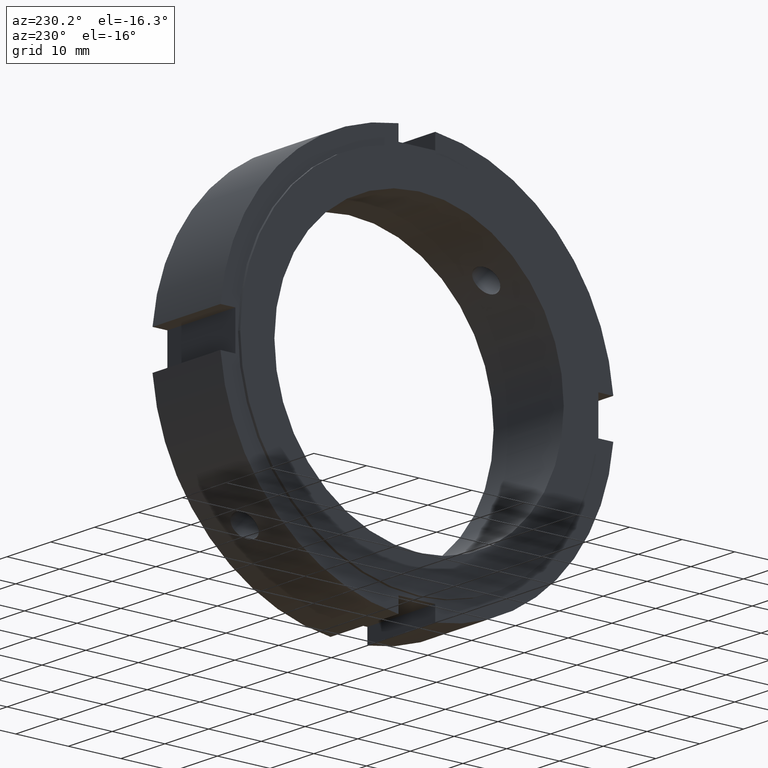
[diagram: clean part render]
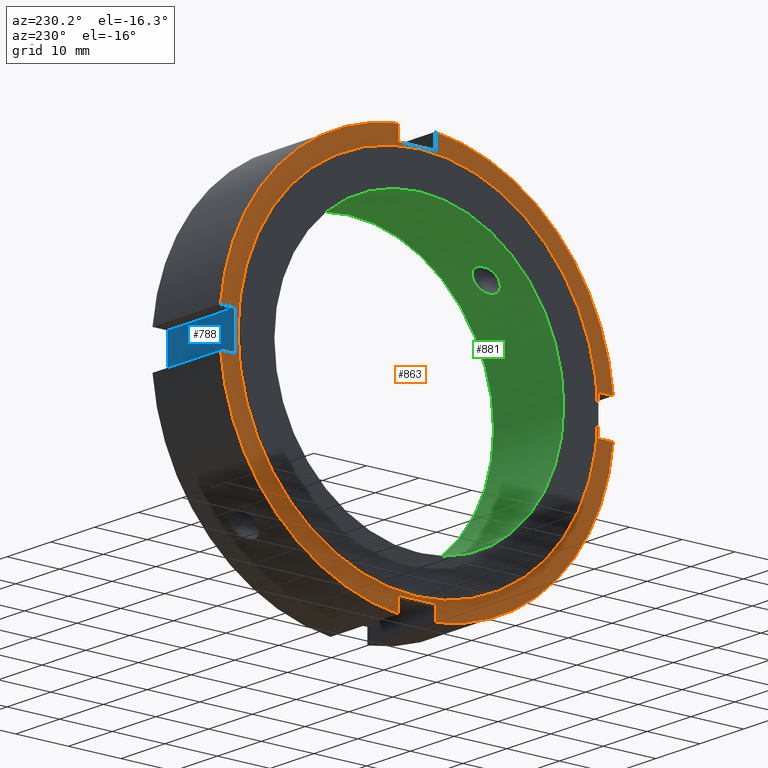
[diagram: same view with three faces highlighted in distinct colors, each labeled with its STEP entity id]
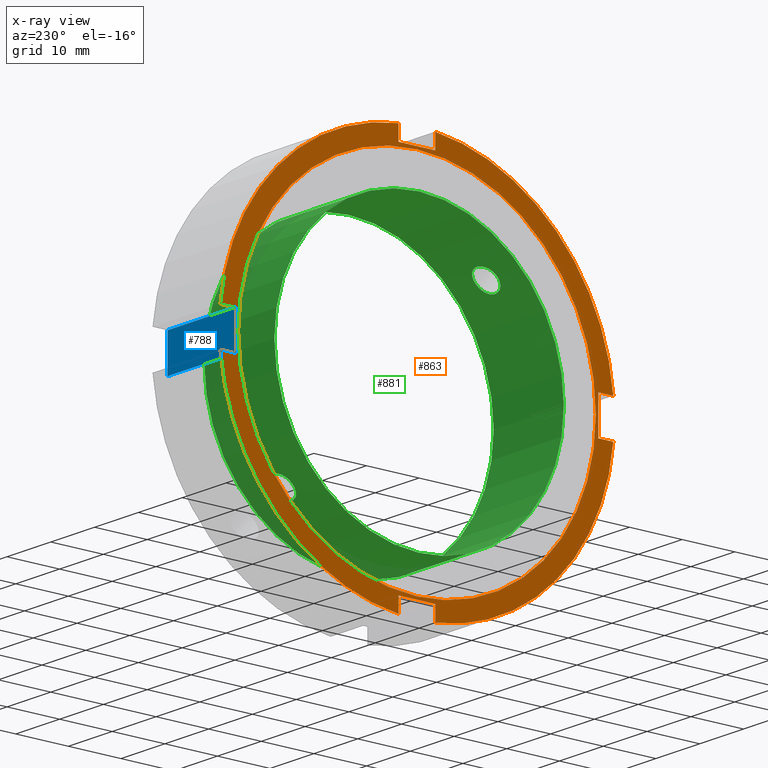
[diagram: x-ray of the same camera — body ghosted, the three highlighted faces saturated]
A machine part, auxiliary view with three faces highlighted in distinct colors.
The next image is the same camera in x-ray (body ghosted, the three faces saturated) — at least one of them is partly hidden behind the body in this view.
Their STEP definitions:

[orange] entity #863 — the highlighted planar face has unit normal (-1, 0, 0).
#249=CARTESIAN_POINT('',(0.499999999999992,-3.500000000000005,-34.500000000000000));
#250=VERTEX_POINT('',#249);
#251=CARTESIAN_POINT('',(0.499999999999989,-3.500000000000005,-37.336309405188935));
#252=VERTEX_POINT('',#251);
#253=CARTESIAN_POINT('',(0.499999999999992,-3.500000000000006,-34.500000000000000));
#254=DIRECTION('',(0.0,0.0,-1.0));
#255=VECTOR('',#254,2.836309405188935);
#256=LINE('',#253,#255);
#257=EDGE_CURVE('',#250,#252,#256,.T.);
#289=CARTESIAN_POINT('',(0.499999999999989,3.499999999999992,-37.336309405188935));
#290=VERTEX_POINT('',#289);
#291=CARTESIAN_POINT('',(0.499999999999992,3.499999999999992,-34.500000000000000));
#292=VERTEX_POINT('',#291);
#293=CARTESIAN_POINT('',(0.499999999999992,3.499999999999993,-37.336309405188928));
#294=DIRECTION('',(0.0,0.0,1.0));
#295=VECTOR('',#294,2.836309405188928);
#296=LINE('',#293,#295);
#297=EDGE_CURVE('',#290,#292,#296,.T.);
#329=CARTESIAN_POINT('',(0.499999999999992,3.499999999999993,-34.500000000000000));
#330=DIRECTION('',(0.0,-1.0,0.0));
#331=VECTOR('',#330,7.0);
#332=LINE('',#329,#331);
#333=EDGE_CURVE('',#292,#250,#332,.T.);
#351=CARTESIAN_POINT('',(0.499999999999992,-34.500000000000000,3.500000000000003));
#352=VERTEX_POINT('',#351);
#353=CARTESIAN_POINT('',(0.499999999999989,-37.336309405188935,3.500000000000003));
#354=VERTEX_POINT('',#353);
#355=CARTESIAN_POINT('',(0.499999999999992,-34.500000000000000,3.500000000000003));
#356=DIRECTION('',(0.0,-1.0,0.0));
#357=VECTOR('',#356,2.836309405188935);
#358=LINE('',#355,#357);
#359=EDGE_CURVE('',#352,#354,#358,.T.);
#391=CARTESIAN_POINT('',(0.499999999999989,-37.336309405188935,-3.499999999999994));
#392=VERTEX_POINT('',#391);
#393=CARTESIAN_POINT('',(0.499999999999992,-34.500000000000000,-3.499999999999994));
#394=VERTEX_POINT('',#393);
#395=CARTESIAN_POINT('',(0.499999999999992,-37.336309405188935,-3.499999999999994));
#396=DIRECTION('',(0.0,1.0,0.0));
#397=VECTOR('',#396,2.836309405188935);
#398=LINE('',#395,#397);
#399=EDGE_CURVE('',#392,#394,#398,.T.);
#431=CARTESIAN_POINT('',(0.499999999999992,-34.500000000000000,-3.499999999999994));
#432=DIRECTION('',(0.0,0.0,1.0));
#433=VECTOR('',#432,6.999999999999996);
#434=LINE('',#431,#433);
#435=EDGE_CURVE('',#394,#352,#434,.T.);
#453=CARTESIAN_POINT('',(0.499999999999992,3.500000000000001,34.500000000000000));
#454=VERTEX_POINT('',#453);
#455=CARTESIAN_POINT('',(0.499999999999989,3.500000000000001,37.336309405188935));
#456=VERTEX_POINT('',#455);
#457=CARTESIAN_POINT('',(0.499999999999992,3.500000000000002,34.500000000000000));
#458=DIRECTION('',(0.0,0.0,1.0));
#459=VECTOR('',#458,2.836309405188928);
#460=LINE('',#457,#459);
#461=EDGE_CURVE('',#454,#456,#460,.T.);
#493=CARTESIAN_POINT('',(0.499999999999989,-3.499999999999996,37.336309405188935));
#494=VERTEX_POINT('',#493);
#495=CARTESIAN_POINT('',(0.499999999999992,-3.499999999999996,34.500000000000000));
#496=VERTEX_POINT('',#495);
#497=CARTESIAN_POINT('',(0.499999999999992,-3.499999999999997,37.336309405188928));
#498=DIRECTION('',(0.0,0.0,-1.0));
#499=VECTOR('',#498,2.836309405188928);
#500=LINE('',#497,#499);
#501=EDGE_CURVE('',#494,#496,#500,.T.);
#533=CARTESIAN_POINT('',(0.499999999999992,-3.499999999999996,34.499999999999993));
#534=DIRECTION('',(0.0,1.0,0.0));
#535=VECTOR('',#534,6.999999999999996);
#536=LINE('',#533,#535);
#537=EDGE_CURVE('',#496,#454,#536,.T.);
#565=CARTESIAN_POINT('',(0.499999999999989,37.336309405188935,3.499999999999999));
#566=VERTEX_POINT('',#565);
#573=CARTESIAN_POINT('',(0.499999999999989,0.0,0.0));
#574=DIRECTION('',(1.0,0.0,0.0));
#575=DIRECTION('',(0.0,1.0,0.0));
#576=AXIS2_PLACEMENT_3D('',#573,#574,#575);
#577=CIRCLE('',#576,37.499999999999993);
#578=EDGE_CURVE('',#566,#456,#577,.T.);
#597=CARTESIAN_POINT('',(0.499999999999989,0.0,0.0));
#598=DIRECTION('',(1.0,0.0,0.0));
#599=DIRECTION('',(0.0,1.0,0.0));
#600=AXIS2_PLACEMENT_3D('',#597,#598,#599);
#601=CIRCLE('',#600,37.499999999999993);
#602=EDGE_CURVE('',#494,#354,#601,.T.);
#616=CARTESIAN_POINT('',(0.499999999999989,37.336309405188935,-3.499999999999999));
#617=VERTEX_POINT('',#616);
#618=CARTESIAN_POINT('',(0.499999999999989,0.0,0.0));
#619=DIRECTION('',(1.0,0.0,0.0));
#620=DIRECTION('',(0.0,1.0,0.0));
#621=AXIS2_PLACEMENT_3D('',#618,#619,#620);
#622=CIRCLE('',#621,37.499999999999993);
#623=EDGE_CURVE('',#290,#617,#622,.T.);
#660=CARTESIAN_POINT('',(0.499999999999989,0.0,0.0));
#661=DIRECTION('',(1.0,0.0,0.0));
#662=DIRECTION('',(0.0,1.0,0.0));
#663=AXIS2_PLACEMENT_3D('',#660,#661,#662);
#664=CIRCLE('',#663,37.499999999999993);
#665=EDGE_CURVE('',#392,#252,#664,.T.);
#729=CARTESIAN_POINT('',(0.499999999999992,34.500000000000000,-3.499999999999999));
#730=VERTEX_POINT('',#729);
#731=CARTESIAN_POINT('',(0.499999999999992,34.500000000000000,-3.499999999999999));
#732=DIRECTION('',(0.0,1.0,0.0));
#733=VECTOR('',#732,2.836309405188935);
#734=LINE('',#731,#733);
#735=EDGE_CURVE('',#730,#617,#734,.T.);
#753=CARTESIAN_POINT('',(0.499999999999992,34.500000000000000,3.499999999999999));
#754=VERTEX_POINT('',#753);
#755=CARTESIAN_POINT('',(0.499999999999992,37.336309405188935,3.499999999999999));
#756=DIRECTION('',(0.0,-1.0,0.0));
#757=VECTOR('',#756,2.836309405188935);
#758=LINE('',#755,#757);
#759=EDGE_CURVE('',#566,#754,#758,.T.);
#777=CARTESIAN_POINT('',(0.499999999999992,34.500000000000000,3.499999999999999));
#778=DIRECTION('',(0.0,0.0,-1.0));
#779=VECTOR('',#778,6.999999999999998);
#780=LINE('',#777,#779);
#781=EDGE_CURVE('',#754,#730,#780,.T.);
#822=CARTESIAN_POINT('',(0.499999999999994,34.0,0.0));
#823=VERTEX_POINT('',#822);
#824=CARTESIAN_POINT('',(0.499999999999994,0.0,0.0));
#825=DIRECTION('',(1.0,0.0,0.0));
#826=DIRECTION('',(0.0,1.0,0.0));
#827=AXIS2_PLACEMENT_3D('',#824,#825,#826);
#828=CIRCLE('',#827,34.0);
#829=EDGE_CURVE('',#823,#823,#828,.T.);
#837=CARTESIAN_POINT('',(0.499999999999992,35.750000000000000,0.0));
#838=DIRECTION('',(-1.0,0.0,0.0));
#839=DIRECTION('',(0.0,0.0,1.0));
#840=AXIS2_PLACEMENT_3D('',#837,#838,#839);
#841=PLANE('',#840);
#842=ORIENTED_EDGE('',*,*,#257,.T.);
#843=ORIENTED_EDGE('',*,*,#665,.F.);
#844=ORIENTED_EDGE('',*,*,#399,.T.);
#845=ORIENTED_EDGE('',*,*,#435,.T.);
#846=ORIENTED_EDGE('',*,*,#359,.T.);
#847=ORIENTED_EDGE('',*,*,#602,.F.);
#848=ORIENTED_EDGE('',*,*,#501,.T.);
#849=ORIENTED_EDGE('',*,*,#537,.T.);
#850=ORIENTED_EDGE('',*,*,#461,.T.);
#851=ORIENTED_EDGE('',*,*,#578,.F.);
#852=ORIENTED_EDGE('',*,*,#759,.T.);
#853=ORIENTED_EDGE('',*,*,#781,.T.);
#854=ORIENTED_EDGE('',*,*,#735,.T.);
#855=ORIENTED_EDGE('',*,*,#623,.F.);
#856=ORIENTED_EDGE('',*,*,#297,.T.);
#857=ORIENTED_EDGE('',*,*,#333,.T.);
#858=EDGE_LOOP('',(#842,#843,#844,#845,#846,#847,#848,#849,#850,#851,#852,#853,#854,#855,#856,#857));
#859=FACE_OUTER_BOUND('',#858,.T.);
#860=ORIENTED_EDGE('',*,*,#829,.T.);
#861=EDGE_LOOP('',(#860));
#862=FACE_BOUND('',#861,.T.);
#863=ADVANCED_FACE('',(#859,#862),#841,.T.);

[blue] entity #788 — the highlighted planar face has unit normal (0, -1, 0).
#679=CARTESIAN_POINT('',(15.999999999999995,34.500000000000000,-3.499999999999999));
#680=VERTEX_POINT('',#679);
#687=CARTESIAN_POINT('',(15.999999999999995,34.500000000000000,3.499999999999999));
#688=VERTEX_POINT('',#687);
#689=CARTESIAN_POINT('',(15.999999999999995,34.499999999999993,-3.499999999999999));
#690=DIRECTION('',(0.0,0.0,1.0));
#691=VECTOR('',#690,6.999999999999998);
#692=LINE('',#689,#691);
#693=EDGE_CURVE('',#680,#688,#692,.T.);
#729=CARTESIAN_POINT('',(0.499999999999992,34.500000000000000,-3.499999999999999));
#730=VERTEX_POINT('',#729);
#737=CARTESIAN_POINT('',(15.999999999999995,34.500000000000000,-3.499999999999999));
#738=DIRECTION('',(-1.0,0.0,0.0));
#739=VECTOR('',#738,15.500000000000004);
#740=LINE('',#737,#739);
#741=EDGE_CURVE('',#680,#730,#740,.T.);
#753=CARTESIAN_POINT('',(0.499999999999992,34.500000000000000,3.499999999999999));
#754=VERTEX_POINT('',#753);
#763=CARTESIAN_POINT('',(15.999999999999995,34.500000000000000,3.499999999999999));
#764=DIRECTION('',(-1.0,0.0,0.0));
#765=VECTOR('',#764,15.500000000000004);
#766=LINE('',#763,#765);
#767=EDGE_CURVE('',#688,#754,#766,.T.);
#772=CARTESIAN_POINT('',(15.999999999999995,34.500000000000000,3.499999999999999));
#773=DIRECTION('',(0.0,-1.0,0.0));
#774=DIRECTION('',(0.0,0.0,-1.0));
#775=AXIS2_PLACEMENT_3D('',#772,#773,#774);
#776=PLANE('',#775);
#777=CARTESIAN_POINT('',(0.499999999999992,34.500000000000000,3.499999999999999));
#778=DIRECTION('',(0.0,0.0,-1.0));
#779=VECTOR('',#778,6.999999999999998);
#780=LINE('',#777,#779);
#781=EDGE_CURVE('',#754,#730,#780,.T.);
#782=ORIENTED_EDGE('',*,*,#781,.F.);
#783=ORIENTED_EDGE('',*,*,#767,.F.);
#784=ORIENTED_EDGE('',*,*,#693,.F.);
#785=ORIENTED_EDGE('',*,*,#741,.T.);
#786=EDGE_LOOP('',(#782,#783,#784,#785));
#787=FACE_OUTER_BOUND('',#786,.T.);
#788=ADVANCED_FACE('',(#787),#776,.F.);

[green] entity #881 — the highlighted cylindrical surface (bore or boss wall) has radius 27.5 mm, axis along (1, 0, 0).
#114=CARTESIAN_POINT('',(7.999999999999996,-21.105995149716790,17.629151106622551));
#115=VERTEX_POINT('',#114);
#116=CARTESIAN_POINT('',(7.999999999999997,-21.105995149716790,17.629151106622555));
#117=CARTESIAN_POINT('',(8.308872071072846,-21.105995149716790,17.629151106622555));
#118=CARTESIAN_POINT('',(8.638218834303039,-21.066397818229532,17.676898345381790));
#119=CARTESIAN_POINT('',(9.243893374187355,-20.903655258126548,17.869052827260262));
#120=CARTESIAN_POINT('',(9.520235228921937,-20.780302721196200,18.013239999935003));
#121=CARTESIAN_POINT('',(9.956608340674002,-20.491285304546324,18.341347356179853));
#122=CARTESIAN_POINT('',(10.145787851830836,-20.306281082575950,18.547149827928735));
#123=CARTESIAN_POINT('',(10.396738235355130,-19.892668340980560,18.990091216697142));
#124=CARTESIAN_POINT('',(10.458499999999997,-19.663841544631772,19.227031420628336));
#125=CARTESIAN_POINT('',(10.458499999999997,-19.227031420628308,19.663841544631804));
#126=CARTESIAN_POINT('',(10.396738235355123,-18.990091216697110,19.892668340980595));
#127=CARTESIAN_POINT('',(10.145787851830825,-18.547149827928699,20.306281082575982));
#128=CARTESIAN_POINT('',(9.956608340674006,-18.341347356179817,20.491285304546352));
#129=CARTESIAN_POINT('',(9.520235228921935,-18.013239999934967,20.780302721196229));
#130=CARTESIAN_POINT('',(9.243893374187351,-17.869052827260241,20.903655258126570));
#131=CARTESIAN_POINT('',(8.638218834303038,-17.676898345381773,21.066397818229554));
#132=CARTESIAN_POINT('',(8.308872071072845,-17.629151106622537,21.105995149716811));
#133=CARTESIAN_POINT('',(7.691127928927148,-17.629151106622537,21.105995149716811));
#134=CARTESIAN_POINT('',(7.361781165696954,-17.676898345381773,21.066397818229554));
#135=CARTESIAN_POINT('',(6.756106625812643,-17.869052827260241,20.903655258126570));
#136=CARTESIAN_POINT('',(6.479764771078058,-18.013239999934967,20.780302721196229));
#137=CARTESIAN_POINT('',(6.043391659325987,-18.341347356179813,20.491285304546352));
#138=CARTESIAN_POINT('',(5.854212148169165,-18.547149827928699,20.306281082575982));
#139=CARTESIAN_POINT('',(5.603261764644868,-18.990091216697110,19.892668340980595));
#140=CARTESIAN_POINT('',(5.541499999999997,-19.227031420628308,19.663841544631804));
#141=CARTESIAN_POINT('',(5.541499999999995,-19.663841544631776,19.227031420628336));
#142=CARTESIAN_POINT('',(5.603261764644864,-19.892668340980567,18.990091216697135));
#143=CARTESIAN_POINT('',(5.854212148169159,-20.306281082575953,18.547149827928724));
#144=CARTESIAN_POINT('',(6.043391659325986,-20.491285304546331,18.341347356179845));
#145=CARTESIAN_POINT('',(6.479764771078056,-20.780302721196211,18.013239999934999));
#146=CARTESIAN_POINT('',(6.756106625812642,-20.903655258126555,17.869052827260258));
#147=CARTESIAN_POINT('',(7.361781165696955,-21.066397818229539,17.676898345381790));
#148=CARTESIAN_POINT('',(7.691127928927148,-21.105995149716790,17.629151106622555));
#149=CARTESIAN_POINT('',(7.999999999999996,-21.105995149716790,17.629151106622555));
#150=B_SPLINE_CURVE_WITH_KNOTS('',3,(#116,#117,#118,#119,#120,#121,#122,#123,#124,#125,#126,#127,#128,#129,#130,#131,#132,#133,#134,#135,#136,#137,#138,#139,#140,#141,#142,#143,#144,#145,#146,#147,#148,#149),.UNSPECIFIED.,.T.,.U.,(4,2,2,2,2,2,2,2,2,2,2,2,2,2,2,2,4),(0.0,0.092661621321855,0.185323242643710,0.277984662875846,0.370646083107982,0.463307503340118,0.555968923572254,0.648630544894108,0.741292166215962,0.833953787537816,0.926615408859671,1.019276829091807,1.111938249323943,1.204599669556079,1.297261089788216,1.389922711110071,1.482584332431925),.UNSPECIFIED.);
#151=EDGE_CURVE('',#115,#115,#150,.T.);
#202=CARTESIAN_POINT('',(7.999999999999996,17.629151106622544,-21.105995149716797));
#203=VERTEX_POINT('',#202);
#204=CARTESIAN_POINT('',(7.999999999999995,17.629151106622547,-21.105995149716801));
#205=CARTESIAN_POINT('',(7.691127928927148,17.629151106622547,-21.105995149716801));
#206=CARTESIAN_POINT('',(7.361781165696955,17.676898345381780,-21.066397818229547));
#207=CARTESIAN_POINT('',(6.756106625812643,17.869052827260248,-20.903655258126562));
#208=CARTESIAN_POINT('',(6.479764771078058,18.013239999934981,-20.780302721196222));
#209=CARTESIAN_POINT('',(6.043391659325989,18.341347356179828,-20.491285304546345));
#210=CARTESIAN_POINT('',(5.854212148169163,18.547149827928713,-20.306281082575968));
#211=CARTESIAN_POINT('',(5.603261764644866,18.990091216697124,-19.892668340980581));
#212=CARTESIAN_POINT('',(5.541499999999997,19.227031420628318,-19.663841544631794));
#213=CARTESIAN_POINT('',(5.541499999999995,19.663841544631783,-19.227031420628332));
#214=CARTESIAN_POINT('',(5.603261764644863,19.892668340980570,-18.990091216697135));
#215=CARTESIAN_POINT('',(5.854212148169157,20.306281082575957,-18.547149827928720));
#216=CARTESIAN_POINT('',(6.043391659325987,20.491285304546338,-18.341347356179838));
#217=CARTESIAN_POINT('',(6.479764771078056,20.780302721196211,-18.013239999934992));
#218=CARTESIAN_POINT('',(6.756106625812638,20.903655258126555,-17.869052827260251));
#219=CARTESIAN_POINT('',(7.361781165696954,21.066397818229539,-17.676898345381780));
#220=CARTESIAN_POINT('',(7.691127928927147,21.105995149716801,-17.629151106622544));
#221=CARTESIAN_POINT('',(8.308872071072846,21.105995149716801,-17.629151106622544));
#222=CARTESIAN_POINT('',(8.638218834303038,21.066397818229543,-17.676898345381783));
#223=CARTESIAN_POINT('',(9.243893374187355,20.903655258126559,-17.869052827260255));
#224=CARTESIAN_POINT('',(9.520235228921937,20.780302721196211,-18.013239999934996));
#225=CARTESIAN_POINT('',(9.956608340674004,20.491285304546338,-18.341347356179845));
#226=CARTESIAN_POINT('',(10.145787851830836,20.306281082575957,-18.547149827928720));
#227=CARTESIAN_POINT('',(10.396738235355130,19.892668340980574,-18.990091216697131));
#228=CARTESIAN_POINT('',(10.458499999999997,19.663841544631783,-19.227031420628332));
#229=CARTESIAN_POINT('',(10.458499999999997,19.227031420628322,-19.663841544631797));
#230=CARTESIAN_POINT('',(10.396738235355127,18.990091216697120,-19.892668340980581));
#231=CARTESIAN_POINT('',(10.145787851830832,18.547149827928713,-20.306281082575968));
#232=CARTESIAN_POINT('',(9.956608340674002,18.341347356179828,-20.491285304546345));
#233=CARTESIAN_POINT('',(9.520235228921933,18.013239999934981,-20.780302721196222));
#234=CARTESIAN_POINT('',(9.243893374187350,17.869052827260248,-20.903655258126562));
#235=CARTESIAN_POINT('',(8.638218834303036,17.676898345381780,-21.066397818229547));
#236=CARTESIAN_POINT('',(8.308872071072845,17.629151106622544,-21.105995149716801));
#237=CARTESIAN_POINT('',(7.999999999999996,17.629151106622544,-21.105995149716801));
#238=B_SPLINE_CURVE_WITH_KNOTS('',3,(#204,#205,#206,#207,#208,#209,#210,#211,#212,#213,#214,#215,#216,#217,#218,#219,#220,#221,#222,#223,#224,#225,#226,#227,#228,#229,#230,#231,#232,#233,#234,#235,#236,#237),.UNSPECIFIED.,.T.,.U.,(4,2,2,2,2,2,2,2,2,2,2,2,2,2,2,2,4),(0.0,0.092661621321855,0.185323242643709,0.277984662875845,0.370646083107981,0.463307503340117,0.555968923572252,0.648630544894107,0.741292166215962,0.833953787537817,0.926615408859672,1.019276829091808,1.111938249323944,1.204599669556079,1.297261089788215,1.389922711110070,1.482584332431924),.UNSPECIFIED.);
#239=EDGE_CURVE('',#203,#203,#238,.T.);
#712=CARTESIAN_POINT('',(15.999999999999996,27.500000000000000,0.0));
#713=VERTEX_POINT('',#712);
#714=CARTESIAN_POINT('',(15.999999999999996,0.0,0.0));
#715=DIRECTION('',(1.0,0.0,0.0));
#716=DIRECTION('',(0.0,1.0,0.0));
#717=AXIS2_PLACEMENT_3D('',#714,#715,#716);
#718=CIRCLE('',#717,27.500000000000000);
#719=EDGE_CURVE('',#713,#713,#718,.T.);
#805=CARTESIAN_POINT('',(-7.525546E-015,27.500000000000000,0.0));
#806=VERTEX_POINT('',#805);
#807=CARTESIAN_POINT('',(-7.524363E-015,0.0,0.0));
#808=DIRECTION('',(1.0,0.0,0.0));
#809=DIRECTION('',(0.0,1.0,0.0));
#810=AXIS2_PLACEMENT_3D('',#807,#808,#809);
#811=CIRCLE('',#810,27.500000000000000);
#812=EDGE_CURVE('',#806,#806,#811,.T.);
#864=CARTESIAN_POINT('',(7.999999999999995,0.0,0.0));
#865=DIRECTION('',(1.0,0.0,0.0));
#866=DIRECTION('',(0.0,1.0,0.0));
#867=AXIS2_PLACEMENT_3D('',#864,#865,#866);
#868=CYLINDRICAL_SURFACE('',#867,27.500000000000000);
#869=ORIENTED_EDGE('',*,*,#812,.F.);
#870=EDGE_LOOP('',(#869));
#871=FACE_OUTER_BOUND('',#870,.T.);
#872=ORIENTED_EDGE('',*,*,#151,.T.);
#873=EDGE_LOOP('',(#872));
#874=FACE_BOUND('',#873,.T.);
#875=ORIENTED_EDGE('',*,*,#239,.T.);
#876=EDGE_LOOP('',(#875));
#877=FACE_BOUND('',#876,.T.);
#878=ORIENTED_EDGE('',*,*,#719,.T.);
#879=EDGE_LOOP('',(#878));
#880=FACE_BOUND('',#879,.T.);
#881=ADVANCED_FACE('',(#871,#874,#877,#880),#868,.F.);